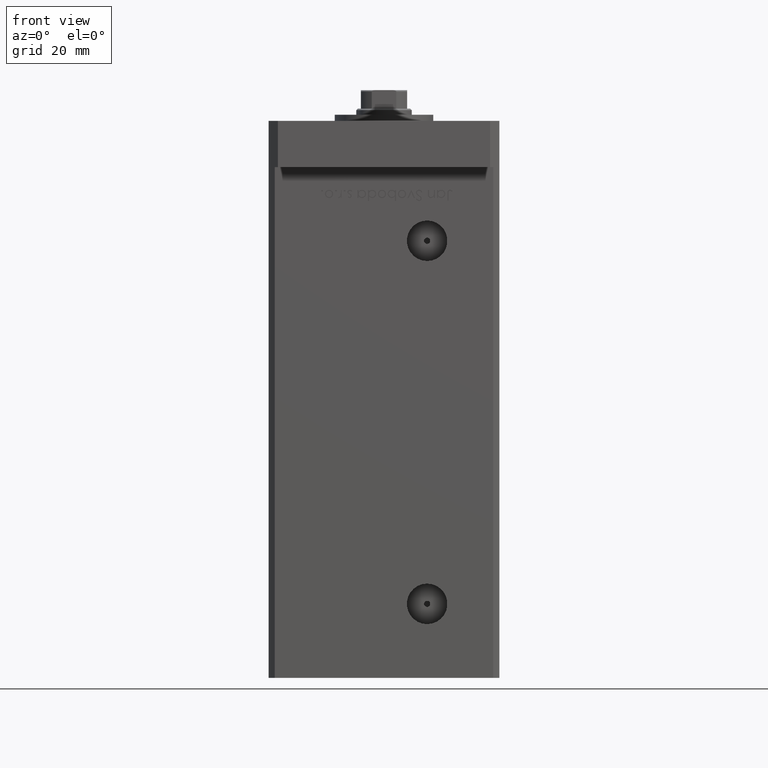
[diagram: clean part render]
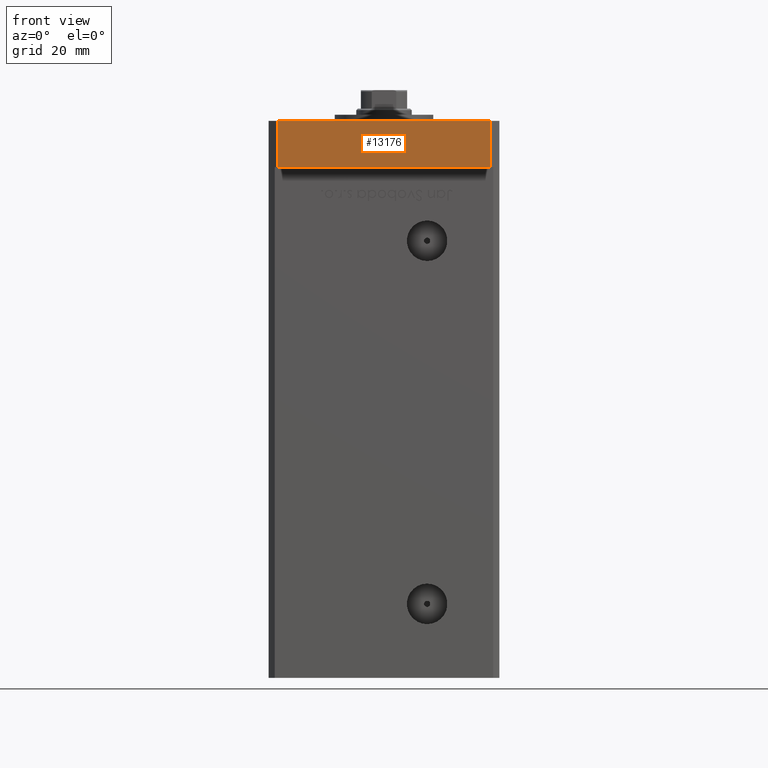
[diagram: same view with one face highlighted and labeled with its STEP entity id]
A machine part, front view. The second image highlights one B-rep face of the part: STEP entity #13176.
In plain terms, the highlighted planar face has unit normal (-0, 1, 0).
Its self-contained STEP definition (entity closure, byte-faithful):
#1265 = CARTESIAN_POINT ( 'NONE',  ( -34.49999999999999289, -60.00000000000002132, 15.00000000000000000 ) ) ;
#1843 = VERTEX_POINT ( 'NONE', #3103 ) ;
#2428 = VERTEX_POINT ( 'NONE', #36313 ) ;
#3103 = CARTESIAN_POINT ( 'NONE',  ( 34.50000000000002132, -60.00000000000000711, 15.00000000000000000 ) ) ;
#3940 = LINE ( 'NONE', #36744, #48338 ) ;
#4168 = ORIENTED_EDGE ( 'NONE', *, *, #47086, .T. ) ;
#6120 = DIRECTION ( 'NONE',  ( -2.011273595335427833E-16, 1.000000000000000000, 0.000000000000000000 ) ) ;
#10196 = PLANE ( 'NONE',  #27728 ) ;
#10981 = EDGE_CURVE ( 'NONE', #1843, #2428, #14408, .T. ) ;
#13176 = ADVANCED_FACE ( 'NONE', ( #26742 ), #10196, .F. ) ;
#14408 = LINE ( 'NONE', #44180, #44955 ) ;
#15646 = LINE ( 'NONE', #36474, #30732 ) ;
#21919 = LINE ( 'NONE', #1265, #46281 ) ;
#22317 = EDGE_CURVE ( 'NONE', #23628, #1843, #3940, .T. ) ;
#23628 = VERTEX_POINT ( 'NONE', #28378 ) ;
#26742 = FACE_OUTER_BOUND ( 'NONE', #41113, .T. ) ;
#27728 = AXIS2_PLACEMENT_3D ( 'NONE', #43241, #6120, #39177 ) ;
#28378 = CARTESIAN_POINT ( 'NONE',  ( -34.49999999999999289, -60.00000000000002132, 15.00000000000000000 ) ) ;
#30732 = VECTOR ( 'NONE', #48936, 1000.000000000000000 ) ;
#30863 = CARTESIAN_POINT ( 'NONE',  ( -34.49999999999999289, -60.00000000000002132, 0.000000000000000000 ) ) ;
#30933 = DIRECTION ( 'NONE',  ( -0.000000000000000000, -0.000000000000000000, -1.000000000000000000 ) ) ;
#31096 = DIRECTION ( 'NONE',  ( -0.000000000000000000, -0.000000000000000000, -1.000000000000000000 ) ) ;
#34652 = VERTEX_POINT ( 'NONE', #30863 ) ;
#36313 = CARTESIAN_POINT ( 'NONE',  ( 34.50000000000002132, -60.00000000000000711, 0.000000000000000000 ) ) ;
#36474 = CARTESIAN_POINT ( 'NONE',  ( -34.49999999999999289, -60.00000000000002132, 0.000000000000000000 ) ) ;
#36744 = CARTESIAN_POINT ( 'NONE',  ( -34.49999999999999289, -60.00000000000002132, 15.00000000000000000 ) ) ;
#39177 = DIRECTION ( 'NONE',  ( -1.000000000000000000, -2.011273595335427833E-16, 0.000000000000000000 ) ) ;
#41113 = EDGE_LOOP ( 'NONE', ( #4168, #47667, #49859, #43270 ) ) ;
#43241 = CARTESIAN_POINT ( 'NONE',  ( -34.49999999999999289, -60.00000000000002132, 15.00000000000000000 ) ) ;
#43270 = ORIENTED_EDGE ( 'NONE', *, *, #46924, .T. ) ;
#44180 = CARTESIAN_POINT ( 'NONE',  ( 34.50000000000002132, -60.00000000000000711, 15.00000000000000000 ) ) ;
#44955 = VECTOR ( 'NONE', #30933, 1000.000000000000000 ) ;
#46281 = VECTOR ( 'NONE', #31096, 1000.000000000000000 ) ;
#46924 = EDGE_CURVE ( 'NONE', #23628, #34652, #21919, .T. ) ;
#47086 = EDGE_CURVE ( 'NONE', #34652, #2428, #15646, .T. ) ;
#47667 = ORIENTED_EDGE ( 'NONE', *, *, #10981, .F. ) ;
#48338 = VECTOR ( 'NONE', #52034, 1000.000000000000000 ) ;
#48936 = DIRECTION ( 'NONE',  ( 1.000000000000000000, 2.011273595335427833E-16, 0.000000000000000000 ) ) ;
#49859 = ORIENTED_EDGE ( 'NONE', *, *, #22317, .F. ) ;
#52034 = DIRECTION ( 'NONE',  ( 1.000000000000000000, 2.011273595335427833E-16, 0.000000000000000000 ) ) ;